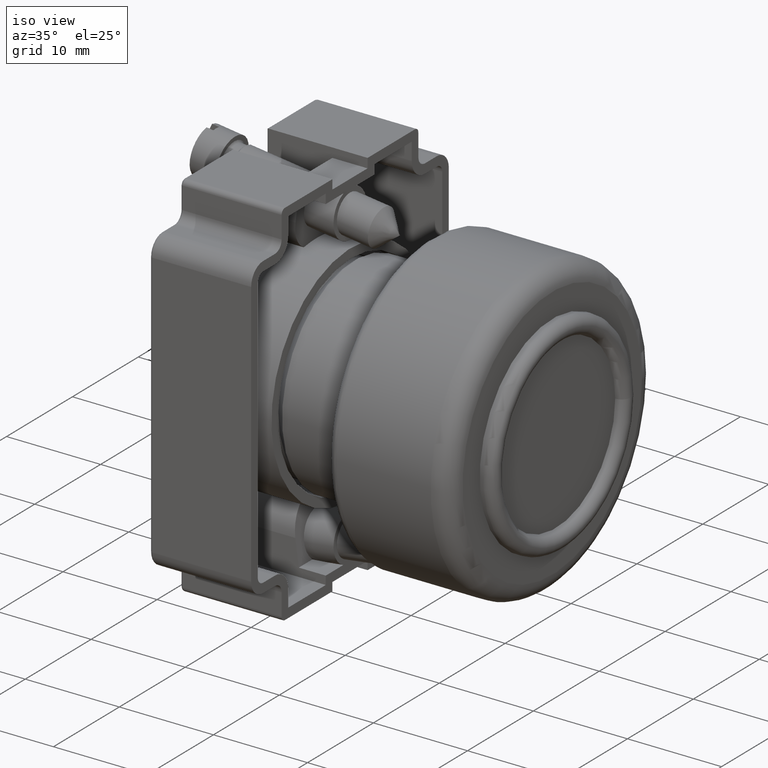
[diagram: clean part render]
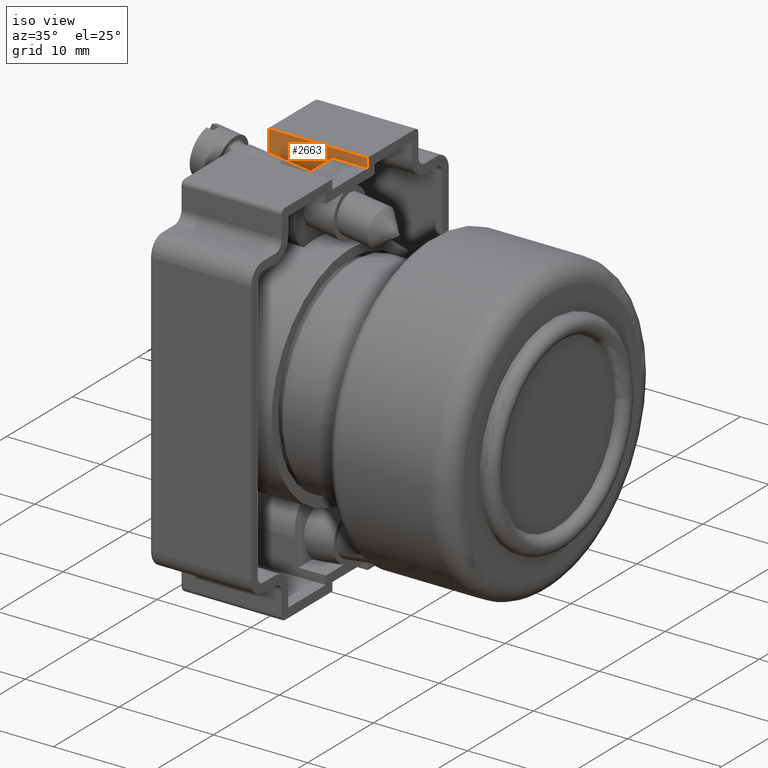
[diagram: same view with one face highlighted and labeled with its STEP entity id]
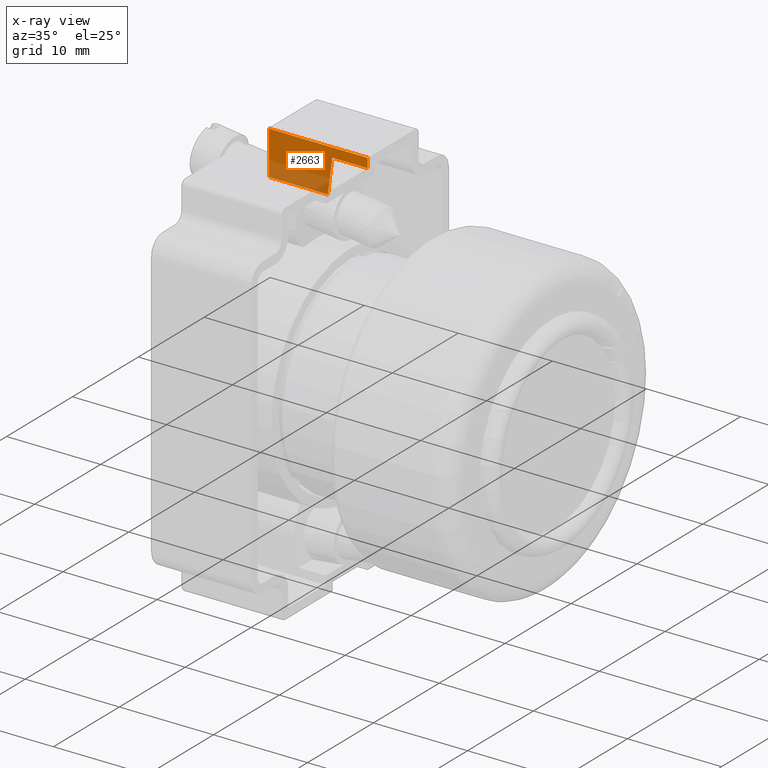
[diagram: x-ray of the same camera — body ghosted, the highlighted face saturated]
A machine part, iso view. The second image highlights one B-rep face of the part: STEP entity #2663.
The next image is the same camera in x-ray: the body ghosted, the highlighted face saturated — about 30% of this face is hidden behind the body in this view.
In plain terms, the highlighted planar face has unit normal (-0, -1, -0).
Its self-contained STEP definition (entity closure, byte-faithful):
#1250=CARTESIAN_POINT('',(20.617219691723896,12.817864828157555,10.500000000000000));
#1251=VERTEX_POINT('',#1250);
#1871=CARTESIAN_POINT('',(15.967219691723900,12.817864828157555,10.500000000000000));
#1872=VERTEX_POINT('',#1871);
#1946=CARTESIAN_POINT('',(15.967219691723900,12.817864828157555,10.500000000000000));
#1947=DIRECTION('',(1.0,0.0,0.0));
#1948=VECTOR('',#1947,4.649999999999997);
#1949=LINE('',#1946,#1948);
#1950=EDGE_CURVE('',#1872,#1251,#1949,.T.);
#2606=CARTESIAN_POINT('',(20.617219691723896,12.817864828157555,0.0));
#2607=VERTEX_POINT('',#2606);
#2608=CARTESIAN_POINT('',(20.617219691723896,12.817864828157555,0.0));
#2609=DIRECTION('',(0.0,0.0,1.0));
#2610=VECTOR('',#2609,10.500000000000000);
#2611=LINE('',#2608,#2610);
#2612=EDGE_CURVE('',#2607,#1251,#2611,.T.);
#2624=CARTESIAN_POINT('',(20.617219691723896,12.817864828157555,0.0));
#2625=DIRECTION('',(0.0,-1.0,0.0));
#2626=DIRECTION('',(0.0,0.0,-1.0));
#2627=AXIS2_PLACEMENT_3D('',#2624,#2625,#2626);
#2628=PLANE('',#2627);
#2629=ORIENTED_EDGE('',*,*,#1950,.F.);
#2630=CARTESIAN_POINT('',(15.967219691723900,12.817864828157555,4.230531616193992));
#2631=VERTEX_POINT('',#2630);
#2632=CARTESIAN_POINT('',(15.967219691723900,12.817864828157555,10.500000000000000));
#2633=DIRECTION('',(0.0,0.0,-1.0));
#2634=VECTOR('',#2633,6.269468383806008);
#2635=LINE('',#2632,#2634);
#2636=EDGE_CURVE('',#1872,#2631,#2635,.T.);
#2637=ORIENTED_EDGE('',*,*,#2636,.T.);
#2638=CARTESIAN_POINT('',(19.617219691723896,12.817864828157555,3.749999999999999));
#2639=VERTEX_POINT('',#2638);
#2640=CARTESIAN_POINT('',(15.967219691723900,12.817864828157555,4.230531616193992));
#2641=DIRECTION('',(0.991444861373810,0.0,-0.130526192220051));
#2642=VECTOR('',#2641,3.681495706117554);
#2643=LINE('',#2640,#2642);
#2644=EDGE_CURVE('',#2631,#2639,#2643,.T.);
#2645=ORIENTED_EDGE('',*,*,#2644,.T.);
#2646=CARTESIAN_POINT('',(19.617219691723896,12.817864828157555,0.0));
#2647=VERTEX_POINT('',#2646);
#2648=CARTESIAN_POINT('',(19.617219691723896,12.817864828157555,0.0));
#2649=DIRECTION('',(0.0,0.0,1.0));
#2650=VECTOR('',#2649,3.749999999999999);
#2651=LINE('',#2648,#2650);
#2652=EDGE_CURVE('',#2647,#2639,#2651,.T.);
#2653=ORIENTED_EDGE('',*,*,#2652,.F.);
#2654=CARTESIAN_POINT('',(19.617219691723896,12.817864828157555,0.0));
#2655=DIRECTION('',(1.0,0.0,0.0));
#2656=VECTOR('',#2655,1.0);
#2657=LINE('',#2654,#2656);
#2658=EDGE_CURVE('',#2647,#2607,#2657,.T.);
#2659=ORIENTED_EDGE('',*,*,#2658,.T.);
#2660=ORIENTED_EDGE('',*,*,#2612,.T.);
#2661=EDGE_LOOP('',(#2629,#2637,#2645,#2653,#2659,#2660));
#2662=FACE_OUTER_BOUND('',#2661,.T.);
#2663=ADVANCED_FACE('',(#2662),#2628,.T.);